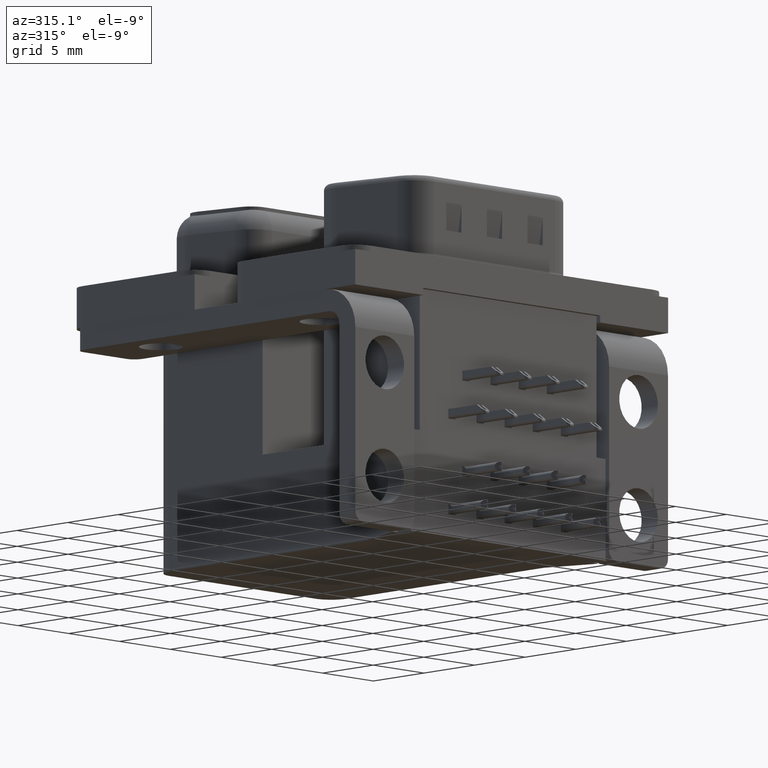
[diagram: clean part render]
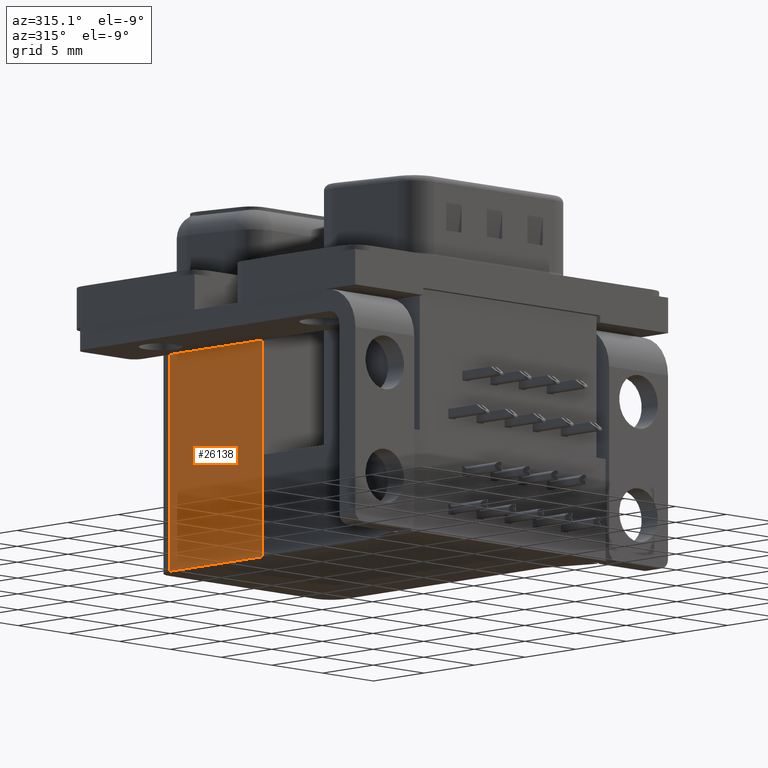
[diagram: same view with one face highlighted and labeled with its STEP entity id]
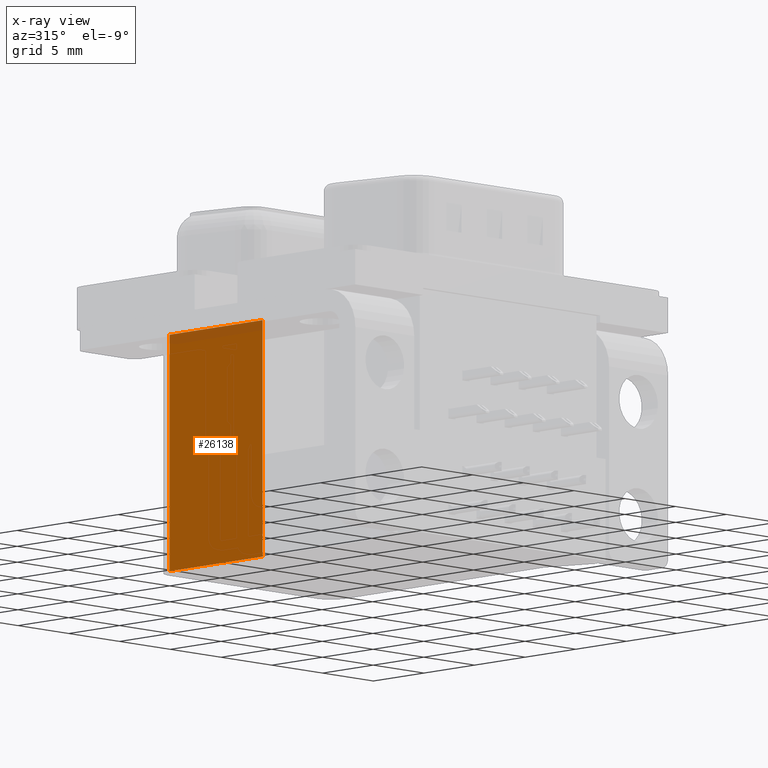
[diagram: x-ray of the same camera — body ghosted, the highlighted face saturated]
A machine part, auxiliary view. The second image highlights one B-rep face of the part: STEP entity #26138.
The next image is the same camera in x-ray: the body ghosted, the highlighted face saturated — about 4% of this face is hidden behind the body in this view.
In plain terms, the highlighted planar face has unit normal (1, 0, 0).
Its self-contained STEP definition (entity closure, byte-faithful):
#1228 = CARTESIAN_POINT ( 'NONE',  ( 3.789999999999992930, 18.79999999999999005, -19.19999999999999929 ) ) ;
#2050 = EDGE_CURVE ( 'NONE', #22365, #18339, #18441, .T. ) ;
#2434 = VECTOR ( 'NONE', #27607, 1000.000000000000000 ) ;
#5413 = CARTESIAN_POINT ( 'NONE',  ( 3.789999999999993374, 9.599999999999994316, -2.500000000000000000 ) ) ;
#5879 = CARTESIAN_POINT ( 'NONE',  ( 3.789999999999992930, 18.79999999999999005, -19.19999999999999929 ) ) ;
#6001 = VECTOR ( 'NONE', #24019, 1000.000000000000000 ) ;
#7483 = DIRECTION ( 'NONE',  ( 1.000000000000000000, 4.713922489067412566E-17, 0.0000000000000000000 ) ) ;
#8093 = EDGE_CURVE ( 'NONE', #13064, #29798, #22319, .T. ) ;
#8363 = AXIS2_PLACEMENT_3D ( 'NONE', #33857, #7483, #34214 ) ;
#11758 = VECTOR ( 'NONE', #16617, 1000.000000000000000 ) ;
#12080 = CARTESIAN_POINT ( 'NONE',  ( 3.789999999999993374, 9.599999999999994316, -19.19999999999999929 ) ) ;
#12218 = PLANE ( 'NONE',  #8363 ) ;
#13064 = VERTEX_POINT ( 'NONE', #12080 ) ;
#14734 = ORIENTED_EDGE ( 'NONE', *, *, #8093, .F. ) ;
#16617 = DIRECTION ( 'NONE',  ( -0.0000000000000000000, -0.0000000000000000000, 1.000000000000000000 ) ) ;
#16716 = CARTESIAN_POINT ( 'NONE',  ( 3.789999999999993374, 9.599999999999994316, -19.19999999999999929 ) ) ;
#17730 = CARTESIAN_POINT ( 'NONE',  ( 3.789999999999992930, 9.600000000000001421, -2.500000000000000000 ) ) ;
#18260 = DIRECTION ( 'NONE',  ( -4.713922489067412566E-17, 1.000000000000000000, 0.0000000000000000000 ) ) ;
#18339 = VERTEX_POINT ( 'NONE', #33683 ) ;
#18441 = LINE ( 'NONE', #5413, #30290 ) ;
#20151 = FACE_OUTER_BOUND ( 'NONE', #34794, .T. ) ;
#21038 = CARTESIAN_POINT ( 'NONE',  ( 3.789999999999993374, 9.599999999999994316, -19.19999999999999929 ) ) ;
#21553 = LINE ( 'NONE', #21038, #6001 ) ;
#22039 = ORIENTED_EDGE ( 'NONE', *, *, #23940, .T. ) ;
#22319 = LINE ( 'NONE', #16716, #2434 ) ;
#22365 = VERTEX_POINT ( 'NONE', #17730 ) ;
#23940 = EDGE_CURVE ( 'NONE', #13064, #22365, #21553, .T. ) ;
#24019 = DIRECTION ( 'NONE',  ( -0.0000000000000000000, -0.0000000000000000000, 1.000000000000000000 ) ) ;
#26138 = ADVANCED_FACE ( 'NONE', ( #20151 ), #12218, .F. ) ;
#26439 = EDGE_CURVE ( 'NONE', #29798, #18339, #29981, .T. ) ;
#26646 = ORIENTED_EDGE ( 'NONE', *, *, #2050, .T. ) ;
#27607 = DIRECTION ( 'NONE',  ( -4.713922489067412566E-17, 1.000000000000000000, 0.0000000000000000000 ) ) ;
#29798 = VERTEX_POINT ( 'NONE', #1228 ) ;
#29981 = LINE ( 'NONE', #5879, #11758 ) ;
#30290 = VECTOR ( 'NONE', #18260, 1000.000000000000000 ) ;
#33683 = CARTESIAN_POINT ( 'NONE',  ( 3.789999999999992930, 18.79999999999999005, -2.500000000000000000 ) ) ;
#33857 = CARTESIAN_POINT ( 'NONE',  ( 3.789999999999993374, 9.599999999999994316, -19.19999999999999929 ) ) ;
#34200 = ORIENTED_EDGE ( 'NONE', *, *, #26439, .F. ) ;
#34214 = DIRECTION ( 'NONE',  ( -4.713922489067412566E-17, 1.000000000000000000, 0.0000000000000000000 ) ) ;
#34794 = EDGE_LOOP ( 'NONE', ( #26646, #34200, #14734, #22039 ) ) ;